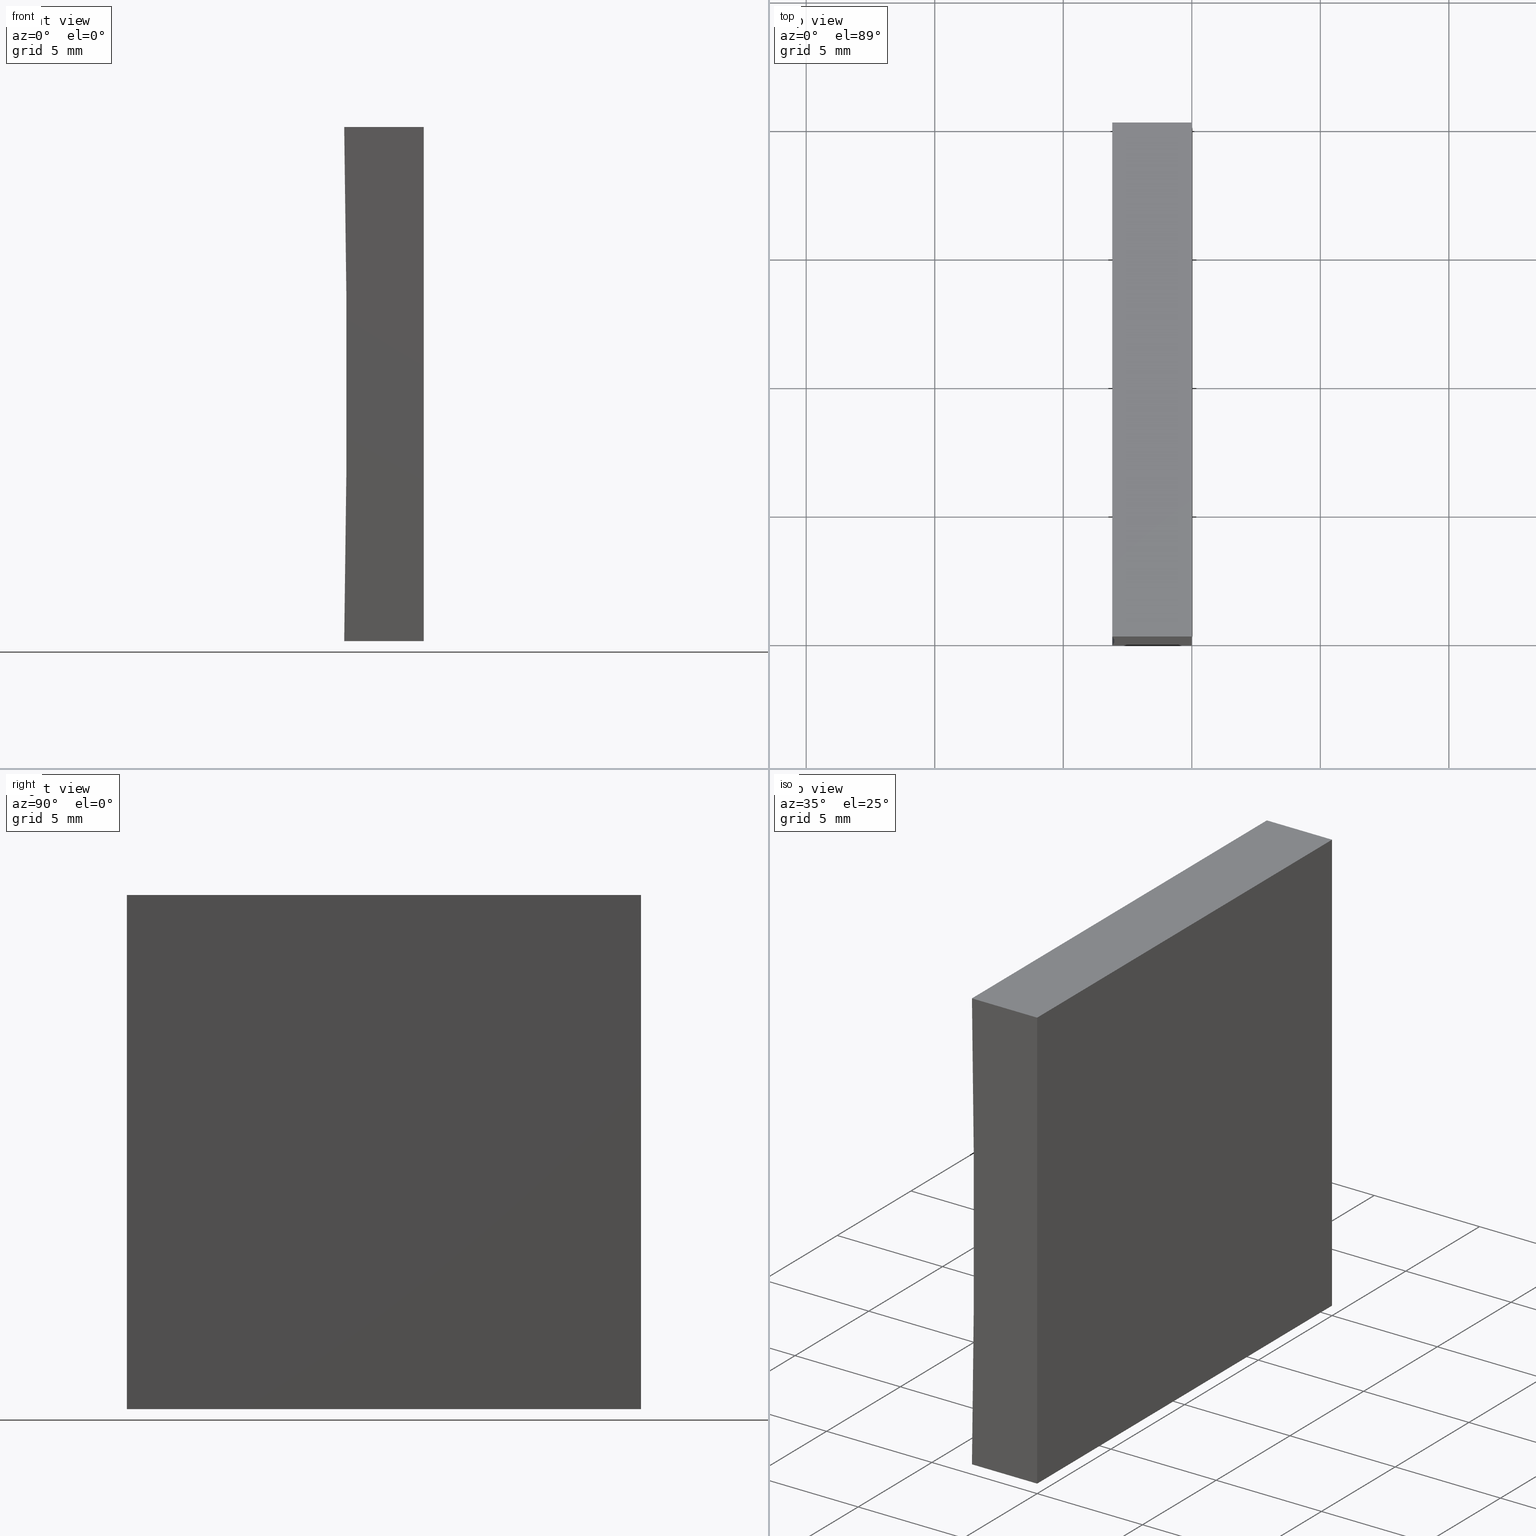
[diagram: canonical four-view strip — front | top / right | iso, engineering-drawing reading convention]
A machine part, canonical four-view strip (front | top / right | iso — engineering-drawing reading convention). The complete STEP part file that produces these views, byte-faithful:
ISO-10303-21;
HEADER;
FILE_DESCRIPTION (( 'STEP AP214' ),
    '1' );
FILE_NAME ('155353.STEP',
    '2019-06-28T06:21:28',
    ( 'user' ),
    ( '΢���й�' ),
    'SwSTEP 2.0',
    'SolidWorks 2016',
    '' );
FILE_SCHEMA (( 'AUTOMOTIVE_DESIGN' ));
ENDSEC;

DATA;
#1 = ORIENTED_EDGE ( 'NONE', *, *, #177, .T. ) ;
#2 = DIRECTION ( 'NONE',  ( 1.000000000000000000, 0.0000000000000000000, 0.0000000000000000000 ) ) ;
#3 = PRODUCT ( '155353', '155353', '', ( #158 ) ) ;
#4 = ORIENTED_EDGE ( 'NONE', *, *, #80, .T. ) ;
#5 = FACE_OUTER_BOUND ( 'NONE', #171, .T. ) ;
#6 = ORIENTED_EDGE ( 'NONE', *, *, #164, .F. ) ;
#7 = DIRECTION ( 'NONE',  ( -1.000000000000000000, 0.0000000000000000000, 1.120348000704781900E-015 ) ) ;
#8 = DIRECTION ( 'NONE',  ( 1.000000000000000000, -0.0000000000000000000, 1.120348000704782300E-015 ) ) ;
#9 = PLANE ( 'NONE',  #186 ) ;
#10 = DIRECTION ( 'NONE',  ( 6.123233995736766000E-017, 0.0000000000000000000, 1.000000000000000000 ) ) ;
#11 = FACE_OUTER_BOUND ( 'NONE', #112, .T. ) ;
#12 = STYLED_ITEM ( 'NONE', ( #195 ), #159 ) ;
#13 = CARTESIAN_POINT ( 'NONE',  ( -519.7999999999999500, 0.0000000000000000000, 10.00000000000006600 ) ) ;
#14 = PRESENTATION_LAYER_ASSIGNMENT (  '', '', ( #204 ) ) ;
#15 = VERTEX_POINT ( 'NONE', #199 ) ;
#16 =( NAMED_UNIT ( * ) PLANE_ANGLE_UNIT ( ) SI_UNIT ( $, .RADIAN. ) );
#17 = COLOUR_RGB ( '',1.000000000000000000, 1.000000000000000000, 1.000000000000000000 ) ;
#18 = VERTEX_POINT ( 'NONE', #132 ) ;
#19 = LINE ( 'NONE', #75, #168 ) ;
#20 = CARTESIAN_POINT ( 'NONE',  ( 0.0000000000000000000, 20.00000000000000000, 0.0000000000000000000 ) ) ;
#21 = LINE ( 'NONE', #27, #92 ) ;
#22 = EDGE_CURVE ( 'NONE', #107, #111, #119, .T. ) ;
#23 = FACE_OUTER_BOUND ( 'NONE', #45, .T. ) ;
#24 = DIRECTION ( 'NONE',  ( 1.120348000704781900E-015, -0.0000000000000000000, 1.000000000000000000 ) ) ;
#25 = SURFACE_STYLE_USAGE ( .BOTH. , #136 ) ;
#26 = DIRECTION ( 'NONE',  ( 1.000000000000000000, -0.0000000000000000000, 1.120348000704782300E-015 ) ) ;
#27 = CARTESIAN_POINT ( 'NONE',  ( 0.0000000000000000000, 20.00000000000000000, 0.0000000000000000000 ) ) ;
#28 = VERTEX_POINT ( 'NONE', #99 ) ;
#29 = CARTESIAN_POINT ( 'NONE',  ( -519.7999999999999500, 20.00000000000000000, 10.00000000000006600 ) ) ;
#30 = AXIS2_PLACEMENT_3D ( 'NONE', #44, #131, #84 ) ;
#31 = CYLINDRICAL_SURFACE ( 'NONE', #118, 516.7999999999999500 ) ;
#32 = ORIENTED_EDGE ( 'NONE', *, *, #22, .F. ) ;
#33 = EDGE_CURVE ( 'NONE', #15, #130, #120, .T. ) ;
#34 = SURFACE_STYLE_FILL_AREA ( #140 ) ;
#35 = CARTESIAN_POINT ( 'NONE',  ( 1.224646799147353300E-015, 20.00000000000000000, 20.00000000000000000 ) ) ;
#36 = ORIENTED_EDGE ( 'NONE', *, *, #180, .T. ) ;
#37 = DIRECTION ( 'NONE',  ( 0.0000000000000000000, 0.0000000000000000000, 1.000000000000000000 ) ) ;
#38 = DIRECTION ( 'NONE',  ( -0.0000000000000000000, -1.000000000000000000, -0.0000000000000000000 ) ) ;
#39 = APPLICATION_CONTEXT ( 'automotive_design' ) ;
#40 = PRODUCT_DEFINITION ( 'δ֪', '', #70, #143 ) ;
#41 = CARTESIAN_POINT ( 'NONE',  ( -3.096758283828839000, 20.00000000000000000, 19.99999999999999600 ) ) ;
#42 = UNCERTAINTY_MEASURE_WITH_UNIT (LENGTH_MEASURE( 1.000000000000000100E-005 ), #146, 'distance_accuracy_value', 'NONE');
#43 = VERTEX_POINT ( 'NONE', #71 ) ;
#44 = CARTESIAN_POINT ( 'NONE',  ( -519.7999999999999500, 20.00000000000000000, 10.00000000000006600 ) ) ;
#45 = EDGE_LOOP ( 'NONE', ( #105, #121, #137, #36 ) ) ;
#46 = AXIS2_PLACEMENT_3D ( 'NONE', #176, #162, #189 ) ;
#47 = EDGE_CURVE ( 'NONE', #28, #43, #172, .T. ) ;
#48 = DIRECTION ( 'NONE',  ( -0.0000000000000000000, -1.000000000000000000, -0.0000000000000000000 ) ) ;
#49 = VECTOR ( 'NONE', #152, 1000.000000000000000 ) ;
#50 = CARTESIAN_POINT ( 'NONE',  ( -519.7999999999999500, 0.0000000000000000000, 10.00000000000006600 ) ) ;
#51 = APPLICATION_CONTEXT ( 'automotive_design' ) ;
#52 = LINE ( 'NONE', #35, #49 ) ;
#53 = EDGE_CURVE ( 'NONE', #130, #18, #202, .T. ) ;
#54 = VECTOR ( 'NONE', #26, 1000.000000000000000 ) ;
#55 = CARTESIAN_POINT ( 'NONE',  ( 0.0000000000000000000, 0.0000000000000000000, 0.0000000000000000000 ) ) ;
#56 = ORIENTED_EDGE ( 'NONE', *, *, #187, .F. ) ;
#57 = ORIENTED_EDGE ( 'NONE', *, *, #155, .F. ) ;
#58 = UNCERTAINTY_MEASURE_WITH_UNIT (LENGTH_MEASURE( 1.000000000000000100E-005 ), #103, 'distance_accuracy_value', 'NONE');
#59 = DIRECTION ( 'NONE',  ( 0.0000000000000000000, -0.0000000000000000000, 1.000000000000000000 ) ) ;
#60 = PRESENTATION_LAYER_ASSIGNMENT (  '', '', ( #12 ) ) ;
#61 =( GEOMETRIC_REPRESENTATION_CONTEXT ( 3 ) GLOBAL_UNCERTAINTY_ASSIGNED_CONTEXT ( ( #42 ) ) GLOBAL_UNIT_ASSIGNED_CONTEXT ( ( #146, #126, #178 ) ) REPRESENTATION_CONTEXT ( 'NONE', 'WORKASPACE' ) );
#62 = ADVANCED_FACE ( 'NONE', ( #104 ), #181, .F. ) ;
#63 = PRESENTATION_STYLE_ASSIGNMENT (( #25 ) ) ;
#64 =( NAMED_UNIT ( * ) SI_UNIT ( $, .STERADIAN. ) SOLID_ANGLE_UNIT ( ) );
#65 = ADVANCED_BREP_SHAPE_REPRESENTATION ( '155353', ( #159, #148 ), #82 ) ;
#66 = APPLICATION_PROTOCOL_DEFINITION ( 'draft international standard', 'automotive_design', 1998, #51 ) ;
#67 = DIRECTION ( 'NONE',  ( -0.0000000000000000000, -1.000000000000000000, -0.0000000000000000000 ) ) ;
#68 = PLANE ( 'NONE',  #30 ) ;
#69 = DIRECTION ( 'NONE',  ( -1.000000000000000000, 0.0000000000000000000, 1.120348000704781900E-015 ) ) ;
#70 = PRODUCT_DEFINITION_FORMATION_WITH_SPECIFIED_SOURCE ( '�κ�', '', #3, .NOT_KNOWN. ) ;
#71 = CARTESIAN_POINT ( 'NONE',  ( -3.096758283828839000, 20.00000000000000000, 19.99999999999999600 ) ) ;
#72 = VECTOR ( 'NONE', #69, 1000.000000000000000 ) ;
#73 = DIRECTION ( 'NONE',  ( 0.0000000000000000000, 1.000000000000000000, 0.0000000000000000000 ) ) ;
#74 = AXIS2_PLACEMENT_3D ( 'NONE', #96, #24, #182 ) ;
#75 = CARTESIAN_POINT ( 'NONE',  ( 1.224646799147353300E-015, 20.00000000000000000, 20.00000000000000000 ) ) ;
#76 = ORIENTED_EDGE ( 'NONE', *, *, #173, .F. ) ;
#77 = MECHANICAL_DESIGN_GEOMETRIC_PRESENTATION_REPRESENTATION (  '', ( #12 ), #61 ) ;
#78 = ADVANCED_FACE ( 'NONE', ( #23 ), #31, .F. ) ;
#79 = FACE_OUTER_BOUND ( 'NONE', #184, .T. ) ;
#80 = EDGE_CURVE ( 'NONE', #43, #130, #190, .T. ) ;
#81 = EDGE_LOOP ( 'NONE', ( #151, #76, #108, #4 ) ) ;
#82 =( GEOMETRIC_REPRESENTATION_CONTEXT ( 3 ) GLOBAL_UNCERTAINTY_ASSIGNED_CONTEXT ( ( #88 ) ) GLOBAL_UNIT_ASSIGNED_CONTEXT ( ( #91, #200, #64 ) ) REPRESENTATION_CONTEXT ( 'NONE', 'WORKASPACE' ) );
#83 = VECTOR ( 'NONE', #87, 1000.000000000000000 ) ;
#84 = DIRECTION ( 'NONE',  ( 0.0000000000000000000, -0.0000000000000000000, 1.000000000000000000 ) ) ;
#85 = CARTESIAN_POINT ( 'NONE',  ( 0.0000000000000000000, 20.00000000000000000, 0.0000000000000000000 ) ) ;
#86 = SURFACE_STYLE_USAGE ( .BOTH. , #142 ) ;
#87 = DIRECTION ( 'NONE',  ( -0.0000000000000000000, -1.000000000000000000, -0.0000000000000000000 ) ) ;
#88 = UNCERTAINTY_MEASURE_WITH_UNIT (LENGTH_MEASURE( 1.000000000000000100E-005 ), #91, 'distance_accuracy_value', 'NONE');
#89 = LINE ( 'NONE', #157, #72 ) ;
#90 = VECTOR ( 'NONE', #67, 1000.000000000000000 ) ;
#91 =( LENGTH_UNIT ( ) NAMED_UNIT ( * ) SI_UNIT ( .MILLI., .METRE. ) );
#92 = VECTOR ( 'NONE', #7, 1000.000000000000000 ) ;
#93 = VECTOR ( 'NONE', #38, 1000.000000000000000 ) ;
#94 = ORIENTED_EDGE ( 'NONE', *, *, #47, .T. ) ;
#95 = ORIENTED_EDGE ( 'NONE', *, *, #160, .T. ) ;
#96 = CARTESIAN_POINT ( 'NONE',  ( 0.0000000000000000000, 20.00000000000000000, 0.0000000000000000000 ) ) ;
#97 = CARTESIAN_POINT ( 'NONE',  ( -3.096758283828839000, 0.0000000000000000000, 19.99999999999999600 ) ) ;
#98 = CARTESIAN_POINT ( 'NONE',  ( 1.224646799147353300E-015, 20.00000000000000000, 20.00000000000000000 ) ) ;
#99 = CARTESIAN_POINT ( 'NONE',  ( -3.096758283828826600, 20.00000000000000000, 5.551115123125782700E-014 ) ) ;
#100 = FILL_AREA_STYLE_COLOUR ( '', #135 ) ;
#101 = DIRECTION ( 'NONE',  ( -1.000000000000000000, 0.0000000000000000000, -1.120348000704782300E-015 ) ) ;
#102 =( GEOMETRIC_REPRESENTATION_CONTEXT ( 3 ) GLOBAL_UNCERTAINTY_ASSIGNED_CONTEXT ( ( #58 ) ) GLOBAL_UNIT_ASSIGNED_CONTEXT ( ( #103, #16, #194 ) ) REPRESENTATION_CONTEXT ( 'NONE', 'WORKASPACE' ) );
#103 =( LENGTH_UNIT ( ) NAMED_UNIT ( * ) SI_UNIT ( .MILLI., .METRE. ) );
#104 = FACE_OUTER_BOUND ( 'NONE', #81, .T. ) ;
#105 = ORIENTED_EDGE ( 'NONE', *, *, #33, .T. ) ;
#106 = FILL_AREA_STYLE ('',( #100 ) ) ;
#107 = VERTEX_POINT ( 'NONE', #85 ) ;
#108 = ORIENTED_EDGE ( 'NONE', *, *, #177, .F. ) ;
#109 = PLANE ( 'NONE',  #141 ) ;
#110 = DIRECTION ( 'NONE',  ( 1.120348000704782300E-015, 0.0000000000000000000, -1.000000000000000000 ) ) ;
#111 = VERTEX_POINT ( 'NONE', #124 ) ;
#112 = EDGE_LOOP ( 'NONE', ( #56, #6, #174, #166 ) ) ;
#113 = DIRECTION ( 'NONE',  ( -6.123233995736766000E-017, -0.0000000000000000000, -1.000000000000000000 ) ) ;
#114 = CLOSED_SHELL ( 'NONE', ( #122, #78, #62, #175, #123, #139 ) ) ;
#115 = CARTESIAN_POINT ( 'NONE',  ( 1.224646799147353300E-015, 20.00000000000000000, 20.00000000000000000 ) ) ;
#116 = ORIENTED_EDGE ( 'NONE', *, *, #22, .T. ) ;
#117 = VECTOR ( 'NONE', #185, 1000.000000000000000 ) ;
#118 = AXIS2_PLACEMENT_3D ( 'NONE', #29, #144, #149 ) ;
#119 = LINE ( 'NONE', #20, #93 ) ;
#120 = CIRCLE ( 'NONE', #169, 516.7999999999999500 ) ;
#121 = ORIENTED_EDGE ( 'NONE', *, *, #80, .F. ) ;
#122 = ADVANCED_FACE ( 'NONE', ( #138 ), #198, .F. ) ;
#123 = ADVANCED_FACE ( 'NONE', ( #79 ), #68, .T. ) ;
#124 = CARTESIAN_POINT ( 'NONE',  ( 0.0000000000000000000, 0.0000000000000000000, 0.0000000000000000000 ) ) ;
#125 = SURFACE_STYLE_FILL_AREA ( #106 ) ;
#126 =( NAMED_UNIT ( * ) PLANE_ANGLE_UNIT ( ) SI_UNIT ( $, .RADIAN. ) );
#127 = DIRECTION ( 'NONE',  ( -1.000000000000000000, 0.0000000000000000000, 6.123233995736766000E-017 ) ) ;
#128 = EDGE_LOOP ( 'NONE', ( #161, #134, #57, #116 ) ) ;
#129 = CARTESIAN_POINT ( 'NONE',  ( -3.096758283828826600, 20.00000000000000000, 5.551115123125782700E-014 ) ) ;
#130 = VERTEX_POINT ( 'NONE', #97 ) ;
#131 = DIRECTION ( 'NONE',  ( 0.0000000000000000000, 1.000000000000000000, 0.0000000000000000000 ) ) ;
#132 = CARTESIAN_POINT ( 'NONE',  ( 1.224646799147353300E-015, 0.0000000000000000000, 20.00000000000000000 ) ) ;
#133 = CARTESIAN_POINT ( 'NONE',  ( 0.0000000000000000000, 0.0000000000000000000, 0.0000000000000000000 ) ) ;
#134 = ORIENTED_EDGE ( 'NONE', *, *, #180, .F. ) ;
#135 = COLOUR_RGB ( '',1.000000000000000000, 1.000000000000000000, 1.000000000000000000 ) ;
#136 = SURFACE_SIDE_STYLE ('',( #34 ) ) ;
#137 = ORIENTED_EDGE ( 'NONE', *, *, #47, .F. ) ;
#138 = FACE_OUTER_BOUND ( 'NONE', #128, .T. ) ;
#139 = ADVANCED_FACE ( 'NONE', ( #11 ), #9, .F. ) ;
#140 = FILL_AREA_STYLE ('',( #165 ) ) ;
#141 = AXIS2_PLACEMENT_3D ( 'NONE', #191, #127, #10 ) ;
#142 = SURFACE_SIDE_STYLE ('',( #125 ) ) ;
#143 = PRODUCT_DEFINITION_CONTEXT ( 'detailed design', #39, 'design' ) ;
#144 = DIRECTION ( 'NONE',  ( -0.0000000000000000000, -1.000000000000000000, -0.0000000000000000000 ) ) ;
#145 = AXIS2_PLACEMENT_3D ( 'NONE', #98, #110, #101 ) ;
#146 =( LENGTH_UNIT ( ) NAMED_UNIT ( * ) SI_UNIT ( .MILLI., .METRE. ) );
#147 = PRODUCT_RELATED_PRODUCT_CATEGORY ( 'part', '', ( #3 ) ) ;
#148 = AXIS2_PLACEMENT_3D ( 'NONE', #133, #37, #2 ) ;
#149 = DIRECTION ( 'NONE',  ( 0.0000000000000000000, 0.0000000000000000000, -1.000000000000000000 ) ) ;
#150 = APPLICATION_PROTOCOL_DEFINITION ( 'draft international standard', 'automotive_design', 1998, #39 ) ;
#151 = ORIENTED_EDGE ( 'NONE', *, *, #53, .T. ) ;
#152 = DIRECTION ( 'NONE',  ( -0.0000000000000000000, -1.000000000000000000, -0.0000000000000000000 ) ) ;
#153 = ORIENTED_EDGE ( 'NONE', *, *, #173, .T. ) ;
#154 = LINE ( 'NONE', #129, #90 ) ;
#155 = EDGE_CURVE ( 'NONE', #107, #28, #21, .T. ) ;
#156 = LINE ( 'NONE', #55, #201 ) ;
#157 = CARTESIAN_POINT ( 'NONE',  ( 0.0000000000000000000, 0.0000000000000000000, 0.0000000000000000000 ) ) ;
#158 = PRODUCT_CONTEXT ( 'NONE', #51, 'mechanical' ) ;
#159 = MANIFOLD_SOLID_BREP ( '͹̨-����1', #114 ) ;
#160 = EDGE_CURVE ( 'NONE', #167, #107, #192, .T. ) ;
#161 = ORIENTED_EDGE ( 'NONE', *, *, #187, .T. ) ;
#162 = DIRECTION ( 'NONE',  ( -0.0000000000000000000, -1.000000000000000000, -0.0000000000000000000 ) ) ;
#163 = DIRECTION ( 'NONE',  ( 0.0000000000000000000, 0.0000000000000000000, 1.000000000000000000 ) ) ;
#164 = EDGE_CURVE ( 'NONE', #18, #111, #156, .T. ) ;
#165 = FILL_AREA_STYLE_COLOUR ( '', #17 ) ;
#166 = ORIENTED_EDGE ( 'NONE', *, *, #33, .F. ) ;
#167 = VERTEX_POINT ( 'NONE', #115 ) ;
#168 = VECTOR ( 'NONE', #8, 1000.000000000000000 ) ;
#169 = AXIS2_PLACEMENT_3D ( 'NONE', #50, #48, #163 ) ;
#170 = ORIENTED_EDGE ( 'NONE', *, *, #160, .F. ) ;
#171 = EDGE_LOOP ( 'NONE', ( #203, #32, #170, #153 ) ) ;
#172 = CIRCLE ( 'NONE', #46, 516.7999999999999500 ) ;
#173 = EDGE_CURVE ( 'NONE', #167, #18, #52, .T. ) ;
#174 = ORIENTED_EDGE ( 'NONE', *, *, #53, .F. ) ;
#175 = ADVANCED_FACE ( 'NONE', ( #5 ), #109, .F. ) ;
#176 = CARTESIAN_POINT ( 'NONE',  ( -519.7999999999999500, 20.00000000000000000, 10.00000000000006600 ) ) ;
#177 = EDGE_CURVE ( 'NONE', #43, #167, #19, .T. ) ;
#178 =( NAMED_UNIT ( * ) SI_UNIT ( $, .STERADIAN. ) SOLID_ANGLE_UNIT ( ) );
#179 = SHAPE_DEFINITION_REPRESENTATION ( #188, #65 ) ;
#180 = EDGE_CURVE ( 'NONE', #28, #15, #154, .T. ) ;
#181 = PLANE ( 'NONE',  #145 ) ;
#182 = DIRECTION ( 'NONE',  ( 1.000000000000000000, 0.0000000000000000000, -1.120348000704781900E-015 ) ) ;
#183 = CARTESIAN_POINT ( 'NONE',  ( 0.0000000000000000000, 20.00000000000000000, 0.0000000000000000000 ) ) ;
#184 = EDGE_LOOP ( 'NONE', ( #197, #94, #1, #95 ) ) ;
#185 = DIRECTION ( 'NONE',  ( -6.123233995736766000E-017, -0.0000000000000000000, -1.000000000000000000 ) ) ;
#186 = AXIS2_PLACEMENT_3D ( 'NONE', #13, #73, #59 ) ;
#187 = EDGE_CURVE ( 'NONE', #111, #15, #89, .T. ) ;
#188 = PRODUCT_DEFINITION_SHAPE ( 'NONE', 'NONE',  #40 ) ;
#189 = DIRECTION ( 'NONE',  ( 0.0000000000000000000, 0.0000000000000000000, 1.000000000000000000 ) ) ;
#190 = LINE ( 'NONE', #41, #83 ) ;
#191 = CARTESIAN_POINT ( 'NONE',  ( 0.0000000000000000000, 20.00000000000000000, 0.0000000000000000000 ) ) ;
#192 = LINE ( 'NONE', #183, #117 ) ;
#193 = CARTESIAN_POINT ( 'NONE',  ( 1.224646799147353300E-015, 0.0000000000000000000, 20.00000000000000000 ) ) ;
#194 =( NAMED_UNIT ( * ) SI_UNIT ( $, .STERADIAN. ) SOLID_ANGLE_UNIT ( ) );
#195 = PRESENTATION_STYLE_ASSIGNMENT (( #86 ) ) ;
#196 = MECHANICAL_DESIGN_GEOMETRIC_PRESENTATION_REPRESENTATION (  '', ( #204 ), #102 ) ;
#197 = ORIENTED_EDGE ( 'NONE', *, *, #155, .T. ) ;
#198 = PLANE ( 'NONE',  #74 ) ;
#199 = CARTESIAN_POINT ( 'NONE',  ( -3.096758283828826600, 0.0000000000000000000, 5.551115123125782700E-014 ) ) ;
#200 =( NAMED_UNIT ( * ) PLANE_ANGLE_UNIT ( ) SI_UNIT ( $, .RADIAN. ) );
#201 = VECTOR ( 'NONE', #113, 1000.000000000000000 ) ;
#202 = LINE ( 'NONE', #193, #54 ) ;
#203 = ORIENTED_EDGE ( 'NONE', *, *, #164, .T. ) ;
#204 = STYLED_ITEM ( 'NONE', ( #63 ), #65 ) ;
ENDSEC;
END-ISO-10303-21;
